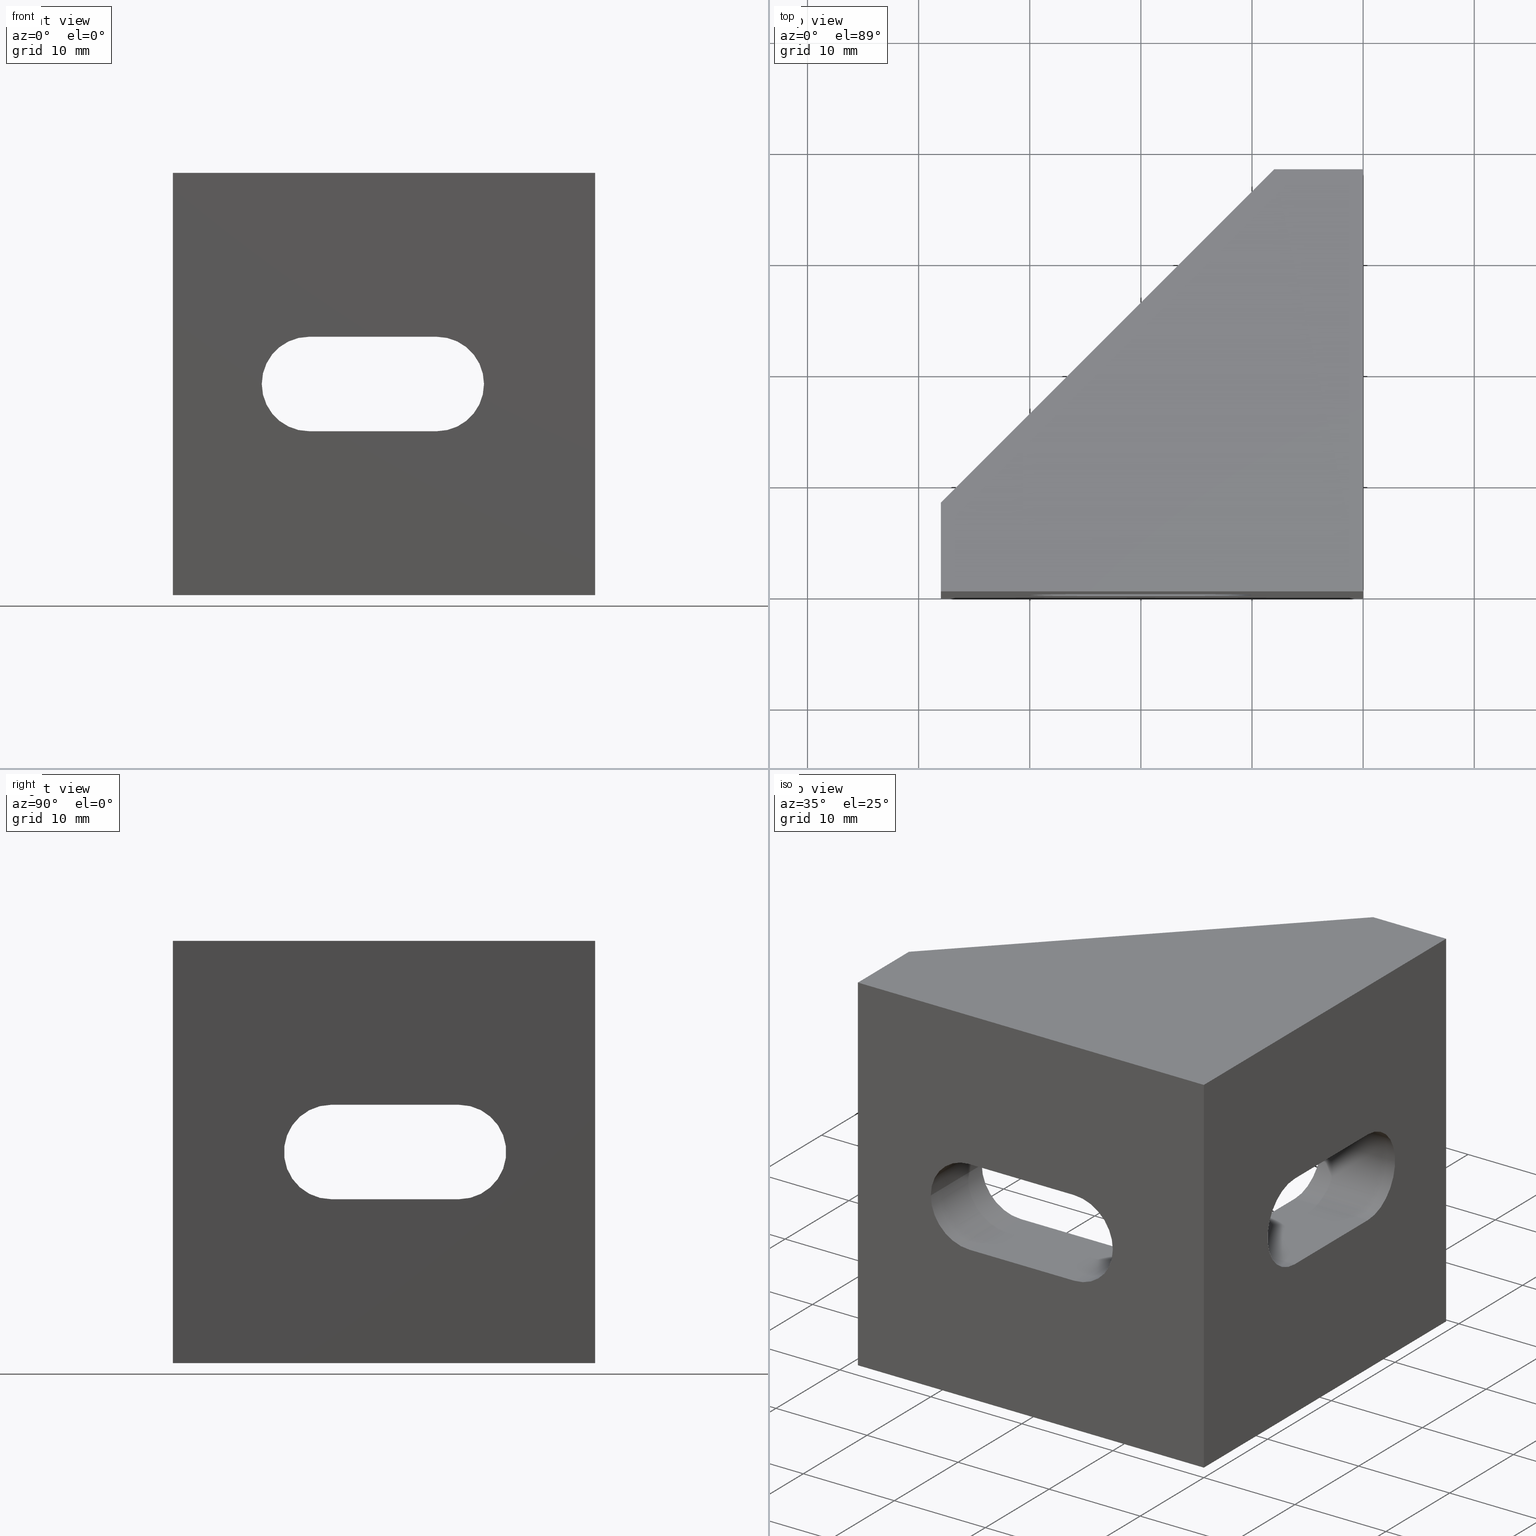
[diagram: canonical four-view strip — front | top / right | iso, engineering-drawing reading convention]
A machine part, canonical four-view strip (front | top / right | iso — engineering-drawing reading convention). The complete STEP part file that produces these views, byte-faithful:
ISO-10303-21;
HEADER;
/****************************************************************
 * Generated by software with PDE/Lib inside                    *
 * PDElib Version v4.4, created Mon 02/23/2004                  *
 * International Technegroup Inc. (www.iti-oh.com)              *
 ****************************************************************/
FILE_DESCRIPTION(('STEP AP203'),'2;1');
FILE_NAME('30.018.00.stp','2011-03-21T16:19:05',(''),(''),'2009.3.110','THINKDESIGN','');
FILE_SCHEMA(('CONFIG_CONTROL_DESIGN'));
ENDSEC;
DATA;
#2=CARTESIAN_POINT('',(0.0,37.999999999847205,-19.0));
#3=DIRECTION('',(0.0,1.0,0.0));
#4=DIRECTION('',(-1.0,0.0,0.0));
#5=AXIS2_PLACEMENT_3D('',#2,#3,#4);
#6=PLANE('',#5);
#7=CARTESIAN_POINT('',(0.0,37.999999999847205,-19.0));
#8=VERTEX_POINT('',#7);
#9=CARTESIAN_POINT('',(-7.999999999968168,37.999999999847205,-19.0));
#10=VERTEX_POINT('',#9);
#11=CARTESIAN_POINT('',(0.0,37.999999999847205,-19.0));
#12=DIRECTION('',(-1.0,0.0,0.0));
#13=VECTOR('',#12,7.999999999968168);
#14=LINE('',#11,#13);
#15=EDGE_CURVE('',#8,#10,#14,.T.);
#16=ORIENTED_EDGE('',*,*,#15,.T.);
#17=CARTESIAN_POINT('',(-7.999999999968168,37.999999999847205,-15.500000000000000));
#18=VERTEX_POINT('',#17);
#19=CARTESIAN_POINT('',(-7.999999999968168,37.999999999847205,-19.0));
#20=DIRECTION('',(0.0,0.0,1.0));
#21=VECTOR('',#20,3.500000000000000);
#22=LINE('',#19,#21);
#23=EDGE_CURVE('',#10,#18,#22,.T.);
#24=ORIENTED_EDGE('',*,*,#23,.T.);
#25=CARTESIAN_POINT('',(-7.999999999968168,37.999999999847205,15.500000000000000));
#26=VERTEX_POINT('',#25);
#27=CARTESIAN_POINT('',(-7.999999999968168,37.999999999847205,-15.500000000000000));
#28=DIRECTION('',(0.0,0.0,1.0));
#29=VECTOR('',#28,31.0);
#30=LINE('',#27,#29);
#31=EDGE_CURVE('',#18,#26,#30,.T.);
#32=ORIENTED_EDGE('',*,*,#31,.T.);
#33=CARTESIAN_POINT('',(-7.999999999968168,37.999999999847205,19.0));
#34=VERTEX_POINT('',#33);
#35=CARTESIAN_POINT('',(-7.999999999968168,37.999999999847205,15.500000000000000));
#36=DIRECTION('',(0.0,0.0,1.0));
#37=VECTOR('',#36,3.500000000000000);
#38=LINE('',#35,#37);
#39=EDGE_CURVE('',#26,#34,#38,.T.);
#40=ORIENTED_EDGE('',*,*,#39,.T.);
#41=CARTESIAN_POINT('',(0.0,37.999999999847205,19.0));
#42=VERTEX_POINT('',#41);
#43=CARTESIAN_POINT('',(0.0,37.999999999847205,19.0));
#44=DIRECTION('',(-1.0,0.0,0.0));
#45=VECTOR('',#44,7.999999999968168);
#46=LINE('',#43,#45);
#47=EDGE_CURVE('',#42,#34,#46,.T.);
#48=ORIENTED_EDGE('',*,*,#47,.F.);
#49=CARTESIAN_POINT('',(0.0,37.999999999847205,-19.0));
#50=DIRECTION('',(0.0,0.0,1.0));
#51=VECTOR('',#50,38.0);
#52=LINE('',#49,#51);
#53=EDGE_CURVE('',#8,#42,#52,.T.);
#54=ORIENTED_EDGE('',*,*,#53,.F.);
#55=EDGE_LOOP('',(#16,#24,#32,#40,#48,#54));
#56=FACE_OUTER_BOUND('',#55,.T.);
#57=ADVANCED_FACE('',(#56),#6,.T.);
#58=CARTESIAN_POINT('',(-7.999999999968168,37.999999999847205,-19.0));
#59=DIRECTION('',(-0.707106781186548,0.707106781186548,0.0));
#60=DIRECTION('',(-0.707106781186548,-0.707106781186548,0.0));
#61=AXIS2_PLACEMENT_3D('',#58,#59,#60);
#62=PLANE('',#61);
#63=CARTESIAN_POINT('',(-37.999999999848114,7.999999999967258,-19.0));
#64=VERTEX_POINT('',#63);
#65=CARTESIAN_POINT('',(-7.999999999968168,37.999999999847205,-19.0));
#66=DIRECTION('',(-0.707106781186548,-0.707106781186548,0.0));
#67=VECTOR('',#66,42.426406871023069);
#68=LINE('',#65,#67);
#69=EDGE_CURVE('',#10,#64,#68,.T.);
#70=ORIENTED_EDGE('',*,*,#69,.T.);
#71=CARTESIAN_POINT('',(-37.999999999848114,7.999999999967258,-15.500000000000000));
#72=VERTEX_POINT('',#71);
#73=CARTESIAN_POINT('',(-37.999999999848114,7.999999999967258,-19.0));
#74=DIRECTION('',(0.0,0.0,1.0));
#75=VECTOR('',#74,3.500000000000000);
#76=LINE('',#73,#75);
#77=EDGE_CURVE('',#64,#72,#76,.T.);
#78=ORIENTED_EDGE('',*,*,#77,.T.);
#79=CARTESIAN_POINT('',(-7.999999999968168,37.999999999847205,-15.500000000000000));
#80=DIRECTION('',(-0.707106781186548,-0.707106781186548,0.0));
#81=VECTOR('',#80,42.426406871023069);
#82=LINE('',#79,#81);
#83=EDGE_CURVE('',#18,#72,#82,.T.);
#84=ORIENTED_EDGE('',*,*,#83,.F.);
#85=ORIENTED_EDGE('',*,*,#23,.F.);
#86=EDGE_LOOP('',(#70,#78,#84,#85));
#87=FACE_OUTER_BOUND('',#86,.T.);
#88=ADVANCED_FACE('',(#87),#62,.T.);
#89=CARTESIAN_POINT('',(-7.999999999968168,37.999999999847205,-19.0));
#90=DIRECTION('',(-0.707106781186548,0.707106781186548,0.0));
#91=DIRECTION('',(-0.707106781186548,-0.707106781186548,0.0));
#92=AXIS2_PLACEMENT_3D('',#89,#90,#91);
#93=PLANE('',#92);
#94=ORIENTED_EDGE('',*,*,#39,.F.);
#95=CARTESIAN_POINT('',(-37.999999999848114,7.999999999967258,15.500000000000000));
#96=VERTEX_POINT('',#95);
#97=CARTESIAN_POINT('',(-7.999999999968168,37.999999999847205,15.500000000000000));
#98=DIRECTION('',(-0.707106781186548,-0.707106781186548,0.0));
#99=VECTOR('',#98,42.426406871023069);
#100=LINE('',#97,#99);
#101=EDGE_CURVE('',#26,#96,#100,.T.);
#102=ORIENTED_EDGE('',*,*,#101,.T.);
#103=CARTESIAN_POINT('',(-37.999999999848114,7.999999999967258,19.0));
#104=VERTEX_POINT('',#103);
#105=CARTESIAN_POINT('',(-37.999999999848114,7.999999999967258,15.500000000000000));
#106=DIRECTION('',(0.0,0.0,1.0));
#107=VECTOR('',#106,3.500000000000000);
#108=LINE('',#105,#107);
#109=EDGE_CURVE('',#96,#104,#108,.T.);
#110=ORIENTED_EDGE('',*,*,#109,.T.);
#111=CARTESIAN_POINT('',(-7.999999999968168,37.999999999847205,19.0));
#112=DIRECTION('',(-0.707106781186548,-0.707106781186548,0.0));
#113=VECTOR('',#112,42.426406871023069);
#114=LINE('',#111,#113);
#115=EDGE_CURVE('',#34,#104,#114,.T.);
#116=ORIENTED_EDGE('',*,*,#115,.F.);
#117=EDGE_LOOP('',(#94,#102,#110,#116));
#118=FACE_OUTER_BOUND('',#117,.T.);
#119=ADVANCED_FACE('',(#118),#93,.T.);
#120=CARTESIAN_POINT('',(-37.999999999848114,7.999999999967258,-19.0));
#121=DIRECTION('',(-1.0,0.0,0.0));
#122=DIRECTION('',(0.0,-1.0,0.0));
#123=AXIS2_PLACEMENT_3D('',#120,#121,#122);
#124=PLANE('',#123);
#125=CARTESIAN_POINT('',(-37.999999999848114,0.0,-19.0));
#126=VERTEX_POINT('',#125);
#127=CARTESIAN_POINT('',(-37.999999999848114,7.999999999967258,-19.0));
#128=DIRECTION('',(0.0,-1.0,0.0));
#129=VECTOR('',#128,7.999999999967258);
#130=LINE('',#127,#129);
#131=EDGE_CURVE('',#64,#126,#130,.T.);
#132=ORIENTED_EDGE('',*,*,#131,.T.);
#133=CARTESIAN_POINT('',(-37.999999999848114,0.0,19.0));
#134=VERTEX_POINT('',#133);
#135=CARTESIAN_POINT('',(-37.999999999848114,0.0,-19.0));
#136=DIRECTION('',(0.0,0.0,1.0));
#137=VECTOR('',#136,38.0);
#138=LINE('',#135,#137);
#139=EDGE_CURVE('',#126,#134,#138,.T.);
#140=ORIENTED_EDGE('',*,*,#139,.T.);
#141=CARTESIAN_POINT('',(-37.999999999848114,7.999999999967258,19.0));
#142=DIRECTION('',(0.0,-1.0,0.0));
#143=VECTOR('',#142,7.999999999967258);
#144=LINE('',#141,#143);
#145=EDGE_CURVE('',#104,#134,#144,.T.);
#146=ORIENTED_EDGE('',*,*,#145,.F.);
#147=ORIENTED_EDGE('',*,*,#109,.F.);
#148=CARTESIAN_POINT('',(-37.999999999848114,7.999999999967258,-15.500000000000000));
#149=DIRECTION('',(0.0,0.0,1.0));
#150=VECTOR('',#149,31.0);
#151=LINE('',#148,#150);
#152=EDGE_CURVE('',#72,#96,#151,.T.);
#153=ORIENTED_EDGE('',*,*,#152,.F.);
#154=ORIENTED_EDGE('',*,*,#77,.F.);
#155=EDGE_LOOP('',(#132,#140,#146,#147,#153,#154));
#156=FACE_OUTER_BOUND('',#155,.T.);
#157=ADVANCED_FACE('',(#156),#124,.T.);
#158=CARTESIAN_POINT('',(-37.999999999848114,0.0,-19.0));
#159=DIRECTION('',(0.0,-1.0,0.0));
#160=DIRECTION('',(1.0,0.0,0.0));
#161=AXIS2_PLACEMENT_3D('',#158,#159,#160);
#162=PLANE('',#161);
#163=CARTESIAN_POINT('',(0.0,0.0,-19.0));
#164=VERTEX_POINT('',#163);
#165=CARTESIAN_POINT('',(-37.999999999848114,0.0,-19.0));
#166=DIRECTION('',(1.0,0.0,0.0));
#167=VECTOR('',#166,37.999999999848114);
#168=LINE('',#165,#167);
#169=EDGE_CURVE('',#126,#164,#168,.T.);
#170=ORIENTED_EDGE('',*,*,#169,.T.);
#171=CARTESIAN_POINT('',(0.0,0.0,19.0));
#172=VERTEX_POINT('',#171);
#173=CARTESIAN_POINT('',(0.0,0.0,-19.0));
#174=DIRECTION('',(0.0,0.0,1.0));
#175=VECTOR('',#174,38.0);
#176=LINE('',#173,#175);
#177=EDGE_CURVE('',#164,#172,#176,.T.);
#178=ORIENTED_EDGE('',*,*,#177,.T.);
#179=CARTESIAN_POINT('',(-37.999999999848114,0.0,19.0));
#180=DIRECTION('',(1.0,0.0,0.0));
#181=VECTOR('',#180,37.999999999848114);
#182=LINE('',#179,#181);
#183=EDGE_CURVE('',#134,#172,#182,.T.);
#184=ORIENTED_EDGE('',*,*,#183,.F.);
#185=ORIENTED_EDGE('',*,*,#139,.F.);
#186=EDGE_LOOP('',(#170,#178,#184,#185));
#187=FACE_OUTER_BOUND('',#186,.T.);
#188=CARTESIAN_POINT('',(-14.249999999959982,0.0,-4.249999999983624));
#189=VERTEX_POINT('',#188);
#190=CARTESIAN_POINT('',(-9.999999999959982,0.0,1.637631E-011));
#191=VERTEX_POINT('',#190);
#192=CARTESIAN_POINT('',(-14.249999999959982,0.0,1.637623E-011));
#193=DIRECTION('',(0.0,-1.0,0.0));
#194=DIRECTION('',(0.0,0.0,-1.0));
#195=AXIS2_PLACEMENT_3D('',#192,#193,#194);
#196=CIRCLE('',#195,4.250000000000000);
#197=EDGE_CURVE('',#189,#191,#196,.T.);
#198=ORIENTED_EDGE('',*,*,#197,.F.);
#199=CARTESIAN_POINT('',(-25.749999999879947,0.0,-4.249999999983626));
#200=VERTEX_POINT('',#199);
#201=CARTESIAN_POINT('',(-25.749999999879947,0.0,-4.249999999983626));
#202=DIRECTION('',(1.0,0.0,0.0));
#203=VECTOR('',#202,11.499999999919964);
#204=LINE('',#201,#203);
#205=EDGE_CURVE('',#200,#189,#204,.T.);
#206=ORIENTED_EDGE('',*,*,#205,.F.);
#207=CARTESIAN_POINT('',(-29.999999999879947,0.0,1.637316E-011));
#208=VERTEX_POINT('',#207);
#209=CARTESIAN_POINT('',(-25.749999999879947,0.0,1.637342E-011));
#210=DIRECTION('',(0.0,-1.0,0.0));
#211=DIRECTION('',(0.0,0.0,-1.0));
#212=AXIS2_PLACEMENT_3D('',#209,#210,#211);
#213=CIRCLE('',#212,4.250000000000000);
#214=EDGE_CURVE('',#208,#200,#213,.T.);
#215=ORIENTED_EDGE('',*,*,#214,.F.);
#216=CARTESIAN_POINT('',(-25.749999999879947,0.0,4.250000000016374));
#217=VERTEX_POINT('',#216);
#218=CARTESIAN_POINT('',(-25.749999999879947,0.0,1.637342E-011));
#219=DIRECTION('',(0.0,-1.0,0.0));
#220=DIRECTION('',(0.0,0.0,1.0));
#221=AXIS2_PLACEMENT_3D('',#218,#219,#220);
#222=CIRCLE('',#221,4.250000000000000);
#223=EDGE_CURVE('',#217,#208,#222,.T.);
#224=ORIENTED_EDGE('',*,*,#223,.F.);
#225=CARTESIAN_POINT('',(-14.249999999959982,0.0,4.250000000016375));
#226=VERTEX_POINT('',#225);
#227=CARTESIAN_POINT('',(-14.249999999959982,0.0,4.250000000016375));
#228=DIRECTION('',(-1.0,0.0,0.0));
#229=VECTOR('',#228,11.499999999919964);
#230=LINE('',#227,#229);
#231=EDGE_CURVE('',#226,#217,#230,.T.);
#232=ORIENTED_EDGE('',*,*,#231,.F.);
#233=CARTESIAN_POINT('',(-14.249999999959982,0.0,1.637511E-011));
#234=DIRECTION('',(0.0,-1.0,0.0));
#235=DIRECTION('',(0.0,0.0,1.0));
#236=AXIS2_PLACEMENT_3D('',#233,#234,#235);
#237=CIRCLE('',#236,4.250000000000000);
#238=EDGE_CURVE('',#191,#226,#237,.T.);
#239=ORIENTED_EDGE('',*,*,#238,.F.);
#240=EDGE_LOOP('',(#198,#206,#215,#224,#232,#239));
#241=FACE_BOUND('',#240,.T.);
#242=ADVANCED_FACE('',(#187,#241),#162,.T.);
#243=CARTESIAN_POINT('',(0.0,0.0,-19.0));
#244=DIRECTION('',(1.0,0.0,0.0));
#245=DIRECTION('',(0.0,1.0,0.0));
#246=AXIS2_PLACEMENT_3D('',#243,#244,#245);
#247=PLANE('',#246);
#248=ORIENTED_EDGE('',*,*,#53,.T.);
#249=CARTESIAN_POINT('',(0.0,0.0,19.0));
#250=DIRECTION('',(0.0,1.0,0.0));
#251=VECTOR('',#250,37.999999999848114);
#252=LINE('',#249,#251);
#253=EDGE_CURVE('',#172,#42,#252,.T.);
#254=ORIENTED_EDGE('',*,*,#253,.F.);
#255=ORIENTED_EDGE('',*,*,#177,.F.);
#256=CARTESIAN_POINT('',(0.0,0.0,-19.0));
#257=DIRECTION('',(0.0,1.0,0.0));
#258=VECTOR('',#257,37.999999999848114);
#259=LINE('',#256,#258);
#260=EDGE_CURVE('',#164,#8,#259,.T.);
#261=ORIENTED_EDGE('',*,*,#260,.T.);
#262=EDGE_LOOP('',(#248,#254,#255,#261));
#263=FACE_OUTER_BOUND('',#262,.T.);
#264=CARTESIAN_POINT('',(0.0,25.749999999896318,-4.249999999983629));
#265=VERTEX_POINT('',#264);
#266=CARTESIAN_POINT('',(0.0,25.749999999896318,4.249999999983000));
#267=VERTEX_POINT('',#266);
#268=CARTESIAN_POINT('',(0.0,25.749999999896318,-3.144152E-013));
#269=DIRECTION('',(1.0,0.0,0.0));
#270=DIRECTION('',(0.0,1.0,0.0));
#271=AXIS2_PLACEMENT_3D('',#268,#269,#270);
#272=CIRCLE('',#271,4.249999999983315);
#273=EDGE_CURVE('',#265,#267,#272,.T.);
#274=ORIENTED_EDGE('',*,*,#273,.F.);
#275=CARTESIAN_POINT('',(0.0,14.249999999942702,-4.249999999983629));
#276=VERTEX_POINT('',#275);
#277=CARTESIAN_POINT('',(0.0,14.249999999942702,-4.249999999983629));
#278=DIRECTION('',(0.0,1.0,0.0));
#279=VECTOR('',#278,11.499999999953616);
#280=LINE('',#277,#279);
#281=EDGE_CURVE('',#276,#265,#280,.T.);
#282=ORIENTED_EDGE('',*,*,#281,.F.);
#283=CARTESIAN_POINT('',(0.0,14.249999999942702,4.249999999983000));
#284=VERTEX_POINT('',#283);
#285=CARTESIAN_POINT('',(0.0,14.249999999942702,-3.144152E-013));
#286=DIRECTION('',(1.0,0.0,0.0));
#287=DIRECTION('',(0.0,1.0,0.0));
#288=AXIS2_PLACEMENT_3D('',#285,#286,#287);
#289=CIRCLE('',#288,4.249999999983315);
#290=EDGE_CURVE('',#284,#276,#289,.T.);
#291=ORIENTED_EDGE('',*,*,#290,.F.);
#292=CARTESIAN_POINT('',(0.0,25.749999999896318,4.249999999983000));
#293=DIRECTION('',(0.0,-1.0,0.0));
#294=VECTOR('',#293,11.499999999953616);
#295=LINE('',#292,#294);
#296=EDGE_CURVE('',#267,#284,#295,.T.);
#297=ORIENTED_EDGE('',*,*,#296,.F.);
#298=EDGE_LOOP('',(#274,#282,#291,#297));
#299=FACE_BOUND('',#298,.T.);
#300=ADVANCED_FACE('',(#263,#299),#247,.T.);
#301=CARTESIAN_POINT('',(-41.800004740979603,-3.800004741223347,-19.0));
#302=DIRECTION('',(0.0,0.0,1.0));
#303=DIRECTION('',(1.0,0.0,0.0));
#304=AXIS2_PLACEMENT_3D('',#301,#302,#303);
#305=PLANE('',#304);
#306=ORIENTED_EDGE('',*,*,#260,.F.);
#307=ORIENTED_EDGE('',*,*,#169,.F.);
#308=ORIENTED_EDGE('',*,*,#131,.F.);
#309=ORIENTED_EDGE('',*,*,#69,.F.);
#310=ORIENTED_EDGE('',*,*,#15,.F.);
#311=EDGE_LOOP('',(#306,#307,#308,#309,#310));
#312=FACE_OUTER_BOUND('',#311,.T.);
#313=ADVANCED_FACE('',(#312),#305,.F.);
#314=CARTESIAN_POINT('',(-41.800004740979603,-3.800004741223347,19.0));
#315=DIRECTION('',(0.0,0.0,1.0));
#316=DIRECTION('',(1.0,0.0,0.0));
#317=AXIS2_PLACEMENT_3D('',#314,#315,#316);
#318=PLANE('',#317);
#319=ORIENTED_EDGE('',*,*,#47,.T.);
#320=ORIENTED_EDGE('',*,*,#115,.T.);
#321=ORIENTED_EDGE('',*,*,#145,.T.);
#322=ORIENTED_EDGE('',*,*,#183,.T.);
#323=ORIENTED_EDGE('',*,*,#253,.T.);
#324=EDGE_LOOP('',(#319,#320,#321,#322,#323));
#325=FACE_OUTER_BOUND('',#324,.T.);
#326=ADVANCED_FACE('',(#325),#318,.T.);
#327=CARTESIAN_POINT('',(-7.999999999968168,7.999999999967258,15.500000000000000));
#328=DIRECTION('',(-1.0,0.0,0.0));
#329=DIRECTION('',(0.0,1.0,0.0));
#330=AXIS2_PLACEMENT_3D('',#327,#328,#329);
#331=PLANE('',#330);
#332=CARTESIAN_POINT('',(-7.999999999968168,7.999999999967258,15.500000000000000));
#333=VERTEX_POINT('',#332);
#334=CARTESIAN_POINT('',(-7.999999999968168,7.999999999967258,15.500000000000000));
#335=DIRECTION('',(0.0,1.0,0.0));
#336=VECTOR('',#335,29.999999999879947);
#337=LINE('',#334,#336);
#338=EDGE_CURVE('',#333,#26,#337,.T.);
#339=ORIENTED_EDGE('',*,*,#338,.T.);
#340=ORIENTED_EDGE('',*,*,#31,.F.);
#341=CARTESIAN_POINT('',(-7.999999999968168,7.999999999967258,-15.500000000000000));
#342=VERTEX_POINT('',#341);
#343=CARTESIAN_POINT('',(-7.999999999968168,7.999999999967258,-15.500000000000000));
#344=DIRECTION('',(0.0,1.0,0.0));
#345=VECTOR('',#344,29.999999999879947);
#346=LINE('',#343,#345);
#347=EDGE_CURVE('',#342,#18,#346,.T.);
#348=ORIENTED_EDGE('',*,*,#347,.F.);
#349=CARTESIAN_POINT('',(-7.999999999968168,7.999999999967258,15.500000000000000));
#350=DIRECTION('',(0.0,0.0,-1.0));
#351=VECTOR('',#350,31.0);
#352=LINE('',#349,#351);
#353=EDGE_CURVE('',#333,#342,#352,.T.);
#354=ORIENTED_EDGE('',*,*,#353,.F.);
#355=EDGE_LOOP('',(#339,#340,#348,#354));
#356=FACE_OUTER_BOUND('',#355,.T.);
#357=CARTESIAN_POINT('',(-7.999999999968168,25.749999999896318,-4.249999999983629));
#358=VERTEX_POINT('',#357);
#359=CARTESIAN_POINT('',(-7.999999999968168,25.749999999896318,4.249999999983000));
#360=VERTEX_POINT('',#359);
#361=CARTESIAN_POINT('',(-7.999999999968168,25.749999999896318,-3.144152E-013));
#362=DIRECTION('',(1.0,0.0,0.0));
#363=DIRECTION('',(0.0,1.0,0.0));
#364=AXIS2_PLACEMENT_3D('',#361,#362,#363);
#365=CIRCLE('',#364,4.249999999983315);
#366=EDGE_CURVE('',#358,#360,#365,.T.);
#367=ORIENTED_EDGE('',*,*,#366,.T.);
#368=CARTESIAN_POINT('',(-7.999999999968168,14.249999999942702,4.249999999983000));
#369=VERTEX_POINT('',#368);
#370=CARTESIAN_POINT('',(-7.999999999968168,25.749999999896318,4.249999999983000));
#371=DIRECTION('',(0.0,-1.0,0.0));
#372=VECTOR('',#371,11.499999999953616);
#373=LINE('',#370,#372);
#374=EDGE_CURVE('',#360,#369,#373,.T.);
#375=ORIENTED_EDGE('',*,*,#374,.T.);
#376=CARTESIAN_POINT('',(-7.999999999968168,14.249999999942702,-4.249999999983629));
#377=VERTEX_POINT('',#376);
#378=CARTESIAN_POINT('',(-7.999999999968168,14.249999999942702,-3.144152E-013));
#379=DIRECTION('',(1.0,0.0,0.0));
#380=DIRECTION('',(0.0,1.0,0.0));
#381=AXIS2_PLACEMENT_3D('',#378,#379,#380);
#382=CIRCLE('',#381,4.249999999983315);
#383=EDGE_CURVE('',#369,#377,#382,.T.);
#384=ORIENTED_EDGE('',*,*,#383,.T.);
#385=CARTESIAN_POINT('',(-7.999999999968168,25.749999999896318,-4.249999999983629));
#386=DIRECTION('',(0.0,-1.0,0.0));
#387=VECTOR('',#386,11.499999999953616);
#388=LINE('',#385,#387);
#389=EDGE_CURVE('',#358,#377,#388,.T.);
#390=ORIENTED_EDGE('',*,*,#389,.F.);
#391=EDGE_LOOP('',(#367,#375,#384,#390));
#392=FACE_BOUND('',#391,.T.);
#393=ADVANCED_FACE('',(#356,#392),#331,.T.);
#394=CARTESIAN_POINT('',(-51.999999999968168,7.999999999967258,15.500000000000000));
#395=DIRECTION('',(0.0,1.0,0.0));
#396=DIRECTION('',(1.0,0.0,0.0));
#397=AXIS2_PLACEMENT_3D('',#394,#395,#396);
#398=PLANE('',#397);
#399=ORIENTED_EDGE('',*,*,#353,.T.);
#400=CARTESIAN_POINT('',(-37.999999999848114,7.999999999967258,-15.500000000000000));
#401=DIRECTION('',(1.0,0.0,0.0));
#402=VECTOR('',#401,29.999999999879947);
#403=LINE('',#400,#402);
#404=EDGE_CURVE('',#72,#342,#403,.T.);
#405=ORIENTED_EDGE('',*,*,#404,.F.);
#406=ORIENTED_EDGE('',*,*,#152,.T.);
#407=CARTESIAN_POINT('',(-37.999999999848114,7.999999999967258,15.500000000000000));
#408=DIRECTION('',(1.0,0.0,0.0));
#409=VECTOR('',#408,29.999999999879947);
#410=LINE('',#407,#409);
#411=EDGE_CURVE('',#96,#333,#410,.T.);
#412=ORIENTED_EDGE('',*,*,#411,.T.);
#413=EDGE_LOOP('',(#399,#405,#406,#412));
#414=FACE_OUTER_BOUND('',#413,.T.);
#415=CARTESIAN_POINT('',(-14.249999999959982,7.999999999967258,-4.249999999983624));
#416=VERTEX_POINT('',#415);
#417=CARTESIAN_POINT('',(-9.999999999959982,7.999999999967258,1.637631E-011));
#418=VERTEX_POINT('',#417);
#419=CARTESIAN_POINT('',(-14.249999999959982,7.999999999967258,1.637623E-011));
#420=DIRECTION('',(0.0,-1.0,0.0));
#421=DIRECTION('',(0.0,0.0,-1.0));
#422=AXIS2_PLACEMENT_3D('',#419,#420,#421);
#423=CIRCLE('',#422,4.250000000000000);
#424=EDGE_CURVE('',#416,#418,#423,.T.);
#425=ORIENTED_EDGE('',*,*,#424,.T.);
#426=CARTESIAN_POINT('',(-14.249999999959982,7.999999999967258,4.250000000016375));
#427=VERTEX_POINT('',#426);
#428=CARTESIAN_POINT('',(-14.249999999959982,7.999999999967258,1.637511E-011));
#429=DIRECTION('',(0.0,-1.0,0.0));
#430=DIRECTION('',(0.0,0.0,1.0));
#431=AXIS2_PLACEMENT_3D('',#428,#429,#430);
#432=CIRCLE('',#431,4.250000000000000);
#433=EDGE_CURVE('',#418,#427,#432,.T.);
#434=ORIENTED_EDGE('',*,*,#433,.T.);
#435=CARTESIAN_POINT('',(-25.749999999879947,7.999999999967258,4.250000000016374));
#436=VERTEX_POINT('',#435);
#437=CARTESIAN_POINT('',(-14.249999999959982,7.999999999967258,4.250000000016375));
#438=DIRECTION('',(-1.0,0.0,0.0));
#439=VECTOR('',#438,11.499999999919964);
#440=LINE('',#437,#439);
#441=EDGE_CURVE('',#427,#436,#440,.T.);
#442=ORIENTED_EDGE('',*,*,#441,.T.);
#443=CARTESIAN_POINT('',(-29.999999999879947,7.999999999967258,1.637316E-011));
#444=VERTEX_POINT('',#443);
#445=CARTESIAN_POINT('',(-25.749999999879947,7.999999999967258,1.637342E-011));
#446=DIRECTION('',(0.0,-1.0,0.0));
#447=DIRECTION('',(0.0,0.0,1.0));
#448=AXIS2_PLACEMENT_3D('',#445,#446,#447);
#449=CIRCLE('',#448,4.250000000000000);
#450=EDGE_CURVE('',#436,#444,#449,.T.);
#451=ORIENTED_EDGE('',*,*,#450,.T.);
#452=CARTESIAN_POINT('',(-25.749999999879947,7.999999999967258,-4.249999999983626));
#453=VERTEX_POINT('',#452);
#454=CARTESIAN_POINT('',(-25.749999999879947,7.999999999967258,1.637342E-011));
#455=DIRECTION('',(0.0,-1.0,0.0));
#456=DIRECTION('',(0.0,0.0,-1.0));
#457=AXIS2_PLACEMENT_3D('',#454,#455,#456);
#458=CIRCLE('',#457,4.250000000000000);
#459=EDGE_CURVE('',#444,#453,#458,.T.);
#460=ORIENTED_EDGE('',*,*,#459,.T.);
#461=CARTESIAN_POINT('',(-14.249999999959982,7.999999999967258,-4.249999999983624));
#462=DIRECTION('',(-1.0,0.0,0.0));
#463=VECTOR('',#462,11.499999999919964);
#464=LINE('',#461,#463);
#465=EDGE_CURVE('',#416,#453,#464,.T.);
#466=ORIENTED_EDGE('',*,*,#465,.F.);
#467=EDGE_LOOP('',(#425,#434,#442,#451,#460,#466));
#468=FACE_BOUND('',#467,.T.);
#469=ADVANCED_FACE('',(#414,#468),#398,.T.);
#470=CARTESIAN_POINT('',(-56.400071687903619,4.299928312029806,15.500000000000000));
#471=DIRECTION('',(0.0,0.0,1.0));
#472=DIRECTION('',(1.0,0.0,0.0));
#473=AXIS2_PLACEMENT_3D('',#470,#471,#472);
#474=PLANE('',#473);
#475=ORIENTED_EDGE('',*,*,#411,.F.);
#476=ORIENTED_EDGE('',*,*,#101,.F.);
#477=ORIENTED_EDGE('',*,*,#338,.F.);
#478=EDGE_LOOP('',(#475,#476,#477));
#479=FACE_OUTER_BOUND('',#478,.T.);
#480=ADVANCED_FACE('',(#479),#474,.F.);
#481=CARTESIAN_POINT('',(-56.400071687903619,4.299928312029806,-15.500000000000000));
#482=DIRECTION('',(0.0,0.0,1.0));
#483=DIRECTION('',(1.0,0.0,0.0));
#484=AXIS2_PLACEMENT_3D('',#481,#482,#483);
#485=PLANE('',#484);
#486=ORIENTED_EDGE('',*,*,#347,.T.);
#487=ORIENTED_EDGE('',*,*,#83,.T.);
#488=ORIENTED_EDGE('',*,*,#404,.T.);
#489=EDGE_LOOP('',(#486,#487,#488));
#490=FACE_OUTER_BOUND('',#489,.T.);
#491=ADVANCED_FACE('',(#490),#485,.T.);
#492=CARTESIAN_POINT('',(0.0,25.749999999896318,-3.144152E-013));
#493=DIRECTION('',(1.0,0.0,0.0));
#494=DIRECTION('',(0.0,6.123234E-017,-1.0));
#495=AXIS2_PLACEMENT_3D('',#492,#493,#494);
#496=CYLINDRICAL_SURFACE('',#495,4.249999999983315);
#497=CARTESIAN_POINT('',(0.0,25.749999999896318,4.249999999983000));
#498=DIRECTION('',(-1.0,0.0,0.0));
#499=VECTOR('',#498,7.999999999968168);
#500=LINE('',#497,#499);
#501=EDGE_CURVE('',#267,#360,#500,.T.);
#502=ORIENTED_EDGE('',*,*,#501,.T.);
#503=ORIENTED_EDGE('',*,*,#366,.F.);
#504=CARTESIAN_POINT('',(0.0,25.749999999896318,-4.249999999983629));
#505=DIRECTION('',(-1.0,0.0,0.0));
#506=VECTOR('',#505,7.999999999968168);
#507=LINE('',#504,#506);
#508=EDGE_CURVE('',#265,#358,#507,.T.);
#509=ORIENTED_EDGE('',*,*,#508,.F.);
#510=ORIENTED_EDGE('',*,*,#273,.T.);
#511=EDGE_LOOP('',(#502,#503,#509,#510));
#512=FACE_OUTER_BOUND('',#511,.T.);
#513=ADVANCED_FACE('',(#512),#496,.F.);
#514=CARTESIAN_POINT('',(0.0,25.749999999896318,4.249999999983000));
#515=DIRECTION('',(0.0,0.0,-1.0));
#516=DIRECTION('',(0.0,-1.0,0.0));
#517=AXIS2_PLACEMENT_3D('',#514,#515,#516);
#518=PLANE('',#517);
#519=ORIENTED_EDGE('',*,*,#296,.T.);
#520=CARTESIAN_POINT('',(0.0,14.249999999942702,4.249999999983000));
#521=DIRECTION('',(-1.0,0.0,0.0));
#522=VECTOR('',#521,7.999999999968168);
#523=LINE('',#520,#522);
#524=EDGE_CURVE('',#284,#369,#523,.T.);
#525=ORIENTED_EDGE('',*,*,#524,.T.);
#526=ORIENTED_EDGE('',*,*,#374,.F.);
#527=ORIENTED_EDGE('',*,*,#501,.F.);
#528=EDGE_LOOP('',(#519,#525,#526,#527));
#529=FACE_OUTER_BOUND('',#528,.T.);
#530=ADVANCED_FACE('',(#529),#518,.T.);
#531=CARTESIAN_POINT('',(0.0,14.249999999942702,-3.144152E-013));
#532=DIRECTION('',(1.0,0.0,0.0));
#533=DIRECTION('',(0.0,1.0,0.0));
#534=AXIS2_PLACEMENT_3D('',#531,#532,#533);
#535=CYLINDRICAL_SURFACE('',#534,4.249999999983315);
#536=ORIENTED_EDGE('',*,*,#290,.T.);
#537=CARTESIAN_POINT('',(0.0,14.249999999942702,-4.249999999983629));
#538=DIRECTION('',(-1.0,0.0,0.0));
#539=VECTOR('',#538,7.999999999968168);
#540=LINE('',#537,#539);
#541=EDGE_CURVE('',#276,#377,#540,.T.);
#542=ORIENTED_EDGE('',*,*,#541,.T.);
#543=ORIENTED_EDGE('',*,*,#383,.F.);
#544=ORIENTED_EDGE('',*,*,#524,.F.);
#545=EDGE_LOOP('',(#536,#542,#543,#544));
#546=FACE_OUTER_BOUND('',#545,.T.);
#547=ADVANCED_FACE('',(#546),#535,.F.);
#548=CARTESIAN_POINT('',(0.0,14.249999999942702,-4.249999999983629));
#549=DIRECTION('',(0.0,0.0,1.0));
#550=DIRECTION('',(0.0,1.0,0.0));
#551=AXIS2_PLACEMENT_3D('',#548,#549,#550);
#552=PLANE('',#551);
#553=ORIENTED_EDGE('',*,*,#508,.T.);
#554=ORIENTED_EDGE('',*,*,#389,.T.);
#555=ORIENTED_EDGE('',*,*,#541,.F.);
#556=ORIENTED_EDGE('',*,*,#281,.T.);
#557=EDGE_LOOP('',(#553,#554,#555,#556));
#558=FACE_OUTER_BOUND('',#557,.T.);
#559=ADVANCED_FACE('',(#558),#552,.T.);
#560=CARTESIAN_POINT('',(-14.249999999959982,0.0,1.637623E-011));
#561=DIRECTION('',(0.0,-1.0,0.0));
#562=DIRECTION('',(0.0,0.0,-1.0));
#563=AXIS2_PLACEMENT_3D('',#560,#561,#562);
#564=CYLINDRICAL_SURFACE('',#563,4.250000000000000);
#565=CARTESIAN_POINT('',(-9.999999999959982,0.0,1.637631E-011));
#566=DIRECTION('',(0.0,1.0,0.0));
#567=VECTOR('',#566,7.999999999967258);
#568=LINE('',#565,#567);
#569=EDGE_CURVE('',#191,#418,#568,.T.);
#570=ORIENTED_EDGE('',*,*,#569,.T.);
#571=ORIENTED_EDGE('',*,*,#424,.F.);
#572=CARTESIAN_POINT('',(-14.249999999959982,0.0,-4.249999999983624));
#573=DIRECTION('',(0.0,1.0,0.0));
#574=VECTOR('',#573,7.999999999967258);
#575=LINE('',#572,#574);
#576=EDGE_CURVE('',#189,#416,#575,.T.);
#577=ORIENTED_EDGE('',*,*,#576,.F.);
#578=ORIENTED_EDGE('',*,*,#197,.T.);
#579=EDGE_LOOP('',(#570,#571,#577,#578));
#580=FACE_OUTER_BOUND('',#579,.T.);
#581=ADVANCED_FACE('',(#580),#564,.F.);
#582=CARTESIAN_POINT('',(-14.249999999959982,0.0,1.637511E-011));
#583=DIRECTION('',(0.0,-1.0,0.0));
#584=DIRECTION('',(1.0,0.0,2.832769E-016));
#585=AXIS2_PLACEMENT_3D('',#582,#583,#584);
#586=CYLINDRICAL_SURFACE('',#585,4.250000000000000);
#587=ORIENTED_EDGE('',*,*,#238,.T.);
#588=CARTESIAN_POINT('',(-14.249999999959982,0.0,4.250000000016375));
#589=DIRECTION('',(0.0,1.0,0.0));
#590=VECTOR('',#589,7.999999999967258);
#591=LINE('',#588,#590);
#592=EDGE_CURVE('',#226,#427,#591,.T.);
#593=ORIENTED_EDGE('',*,*,#592,.T.);
#594=ORIENTED_EDGE('',*,*,#433,.F.);
#595=ORIENTED_EDGE('',*,*,#569,.F.);
#596=EDGE_LOOP('',(#587,#593,#594,#595));
#597=FACE_OUTER_BOUND('',#596,.T.);
#598=ADVANCED_FACE('',(#597),#586,.F.);
#599=CARTESIAN_POINT('',(-14.249999999959982,0.0,4.250000000016375));
#600=DIRECTION('',(0.0,0.0,-1.0));
#601=DIRECTION('',(-1.0,0.0,0.0));
#602=AXIS2_PLACEMENT_3D('',#599,#600,#601);
#603=PLANE('',#602);
#604=ORIENTED_EDGE('',*,*,#231,.T.);
#605=CARTESIAN_POINT('',(-25.749999999879947,0.0,4.250000000016374));
#606=DIRECTION('',(0.0,1.0,0.0));
#607=VECTOR('',#606,7.999999999967258);
#608=LINE('',#605,#607);
#609=EDGE_CURVE('',#217,#436,#608,.T.);
#610=ORIENTED_EDGE('',*,*,#609,.T.);
#611=ORIENTED_EDGE('',*,*,#441,.F.);
#612=ORIENTED_EDGE('',*,*,#592,.F.);
#613=EDGE_LOOP('',(#604,#610,#611,#612));
#614=FACE_OUTER_BOUND('',#613,.T.);
#615=ADVANCED_FACE('',(#614),#603,.T.);
#616=CARTESIAN_POINT('',(-25.749999999879947,0.0,1.637342E-011));
#617=DIRECTION('',(0.0,-1.0,0.0));
#618=DIRECTION('',(0.0,0.0,1.0));
#619=AXIS2_PLACEMENT_3D('',#616,#617,#618);
#620=CYLINDRICAL_SURFACE('',#619,4.250000000000000);
#621=ORIENTED_EDGE('',*,*,#223,.T.);
#622=CARTESIAN_POINT('',(-29.999999999879947,0.0,1.637316E-011));
#623=DIRECTION('',(0.0,1.0,0.0));
#624=VECTOR('',#623,7.999999999967258);
#625=LINE('',#622,#624);
#626=EDGE_CURVE('',#208,#444,#625,.T.);
#627=ORIENTED_EDGE('',*,*,#626,.T.);
#628=ORIENTED_EDGE('',*,*,#450,.F.);
#629=ORIENTED_EDGE('',*,*,#609,.F.);
#630=EDGE_LOOP('',(#621,#627,#628,#629));
#631=FACE_OUTER_BOUND('',#630,.T.);
#632=ADVANCED_FACE('',(#631),#620,.F.);
#633=CARTESIAN_POINT('',(-25.749999999879947,0.0,1.637342E-011));
#634=DIRECTION('',(0.0,-1.0,0.0));
#635=DIRECTION('',(-1.0,0.0,-6.123234E-017));
#636=AXIS2_PLACEMENT_3D('',#633,#634,#635);
#637=CYLINDRICAL_SURFACE('',#636,4.250000000000000);
#638=ORIENTED_EDGE('',*,*,#214,.T.);
#639=CARTESIAN_POINT('',(-25.749999999879947,0.0,-4.249999999983626));
#640=DIRECTION('',(0.0,1.0,0.0));
#641=VECTOR('',#640,7.999999999967258);
#642=LINE('',#639,#641);
#643=EDGE_CURVE('',#200,#453,#642,.T.);
#644=ORIENTED_EDGE('',*,*,#643,.T.);
#645=ORIENTED_EDGE('',*,*,#459,.F.);
#646=ORIENTED_EDGE('',*,*,#626,.F.);
#647=EDGE_LOOP('',(#638,#644,#645,#646));
#648=FACE_OUTER_BOUND('',#647,.T.);
#649=ADVANCED_FACE('',(#648),#637,.F.);
#650=CARTESIAN_POINT('',(-25.749999999879947,0.0,-4.249999999983626));
#651=DIRECTION('',(0.0,0.0,1.0));
#652=DIRECTION('',(1.0,0.0,0.0));
#653=AXIS2_PLACEMENT_3D('',#650,#651,#652);
#654=PLANE('',#653);
#655=ORIENTED_EDGE('',*,*,#576,.T.);
#656=ORIENTED_EDGE('',*,*,#465,.T.);
#657=ORIENTED_EDGE('',*,*,#643,.F.);
#658=ORIENTED_EDGE('',*,*,#205,.T.);
#659=EDGE_LOOP('',(#655,#656,#657,#658));
#660=FACE_OUTER_BOUND('',#659,.T.);
#661=ADVANCED_FACE('',(#660),#654,.T.);
#662=CLOSED_SHELL('',(#57,#88,#119,#157,#242,#300,#313,#326,#393,#469,#480,#491,#513,#530,#547,#559,#581,#598,#615,#632,#649,#661));
#663=MANIFOLD_SOLID_BREP('',#662);
#669=(NAMED_UNIT(*)PLANE_ANGLE_UNIT()SI_UNIT($,.RADIAN.));
#670=DIMENSIONAL_EXPONENTS(0.0,0.0,0.0,0.0,0.0,0.0,0.0);
#671=PLANE_ANGLE_MEASURE_WITH_UNIT(PLANE_ANGLE_MEASURE(0.017453292500000),#669);
#675=(CONVERSION_BASED_UNIT('DEGREE',#671)NAMED_UNIT(#670)PLANE_ANGLE_UNIT());
#679=(NAMED_UNIT(*)SI_UNIT($,.STERADIAN.)SOLID_ANGLE_UNIT());
#683=(LENGTH_UNIT()NAMED_UNIT(*)SI_UNIT(.MILLI.,.METRE.));
#685=UNCERTAINTY_MEASURE_WITH_UNIT(LENGTH_MEASURE(0.001000000000000),#683,'DISTANCE_ACCURACY_VALUE','');
#687=(GEOMETRIC_REPRESENTATION_CONTEXT(3)GLOBAL_UNCERTAINTY_ASSIGNED_CONTEXT((#685))GLOBAL_UNIT_ASSIGNED_CONTEXT((#675,#679,#683))REPRESENTATION_CONTEXT('thinkdesign','2009.3.110'));
#688=ADVANCED_BREP_SHAPE_REPRESENTATION('',(#663),#687);
#689=APPLICATION_CONTEXT('configuration controlled 3D designs of mechanical parts and assemblies');
#690=APPLICATION_PROTOCOL_DEFINITION('International Standard','config_control_design',1995,#689);
#691=MECHANICAL_CONTEXT('None',#689,'mechanical');
#692=PRODUCT('None','None','None',(#691));
#693=PRODUCT_RELATED_PRODUCT_CATEGORY('detail',$,(#692));
#694=PRODUCT_CATEGORY('part',$);
#695=PRODUCT_CATEGORY_RELATIONSHIP('None','None',#694,#693);
#696=PERSON('PERSON1','None','None',$,$,$);
#697=ORGANIZATION('','None','None');
#698=PERSON_AND_ORGANIZATION(#696,#697);
#699=PERSON_AND_ORGANIZATION_ROLE('design_owner');
#700=CC_DESIGN_PERSON_AND_ORGANIZATION_ASSIGNMENT(#698,#699,(#692));
#701=PRODUCT_DEFINITION_FORMATION_WITH_SPECIFIED_SOURCE('None','None',#692,.NOT_KNOWN.);
#702=PERSON('PERSON2','None','None',$,$,$);
#703=ORGANIZATION('','None','None');
#704=PERSON_AND_ORGANIZATION(#702,#703);
#705=PERSON_AND_ORGANIZATION_ROLE('creator');
#706=CC_DESIGN_PERSON_AND_ORGANIZATION_ASSIGNMENT(#704,#705,(#701));
#707=PERSON('PERSON3','None','None',$,$,$);
#708=ORGANIZATION('','None','None');
#709=PERSON_AND_ORGANIZATION(#707,#708);
#710=PERSON_AND_ORGANIZATION_ROLE('part_supplier');
#711=CC_DESIGN_PERSON_AND_ORGANIZATION_ASSIGNMENT(#709,#710,(#701));
#712=APPROVAL_STATUS('approved');
#713=APPROVAL(#712,'None');
#714=PERSON('PERSON4','None','None',$,$,$);
#715=ORGANIZATION('','None','None');
#716=PERSON_AND_ORGANIZATION(#714,#715);
#717=APPROVAL_ROLE('None');
#718=APPROVAL_PERSON_ORGANIZATION(#716,#713,#717);
#719=CALENDAR_DATE(2011,21,3);
#720=COORDINATED_UNIVERSAL_TIME_OFFSET(0,0,.AHEAD.);
#721=LOCAL_TIME(16,19,5.0,#720);
#722=DATE_AND_TIME(#719,#721);
#723=APPROVAL_DATE_TIME(#722,#713);
#724=CC_DESIGN_APPROVAL(#713,(#701));
#725=SECURITY_CLASSIFICATION_LEVEL('unclassified');
#726=SECURITY_CLASSIFICATION('None','None',#725);
#727=CC_DESIGN_SECURITY_CLASSIFICATION(#726,(#701));
#728=APPROVAL_STATUS('approved');
#729=APPROVAL(#728,'None');
#730=PERSON('PERSON5','None','None',$,$,$);
#731=ORGANIZATION('','None','None');
#732=PERSON_AND_ORGANIZATION(#730,#731);
#733=APPROVAL_ROLE('None');
#734=APPROVAL_PERSON_ORGANIZATION(#732,#729,#733);
#735=CALENDAR_DATE(2011,21,3);
#736=COORDINATED_UNIVERSAL_TIME_OFFSET(0,0,.AHEAD.);
#737=LOCAL_TIME(16,19,5.0,#736);
#738=DATE_AND_TIME(#735,#737);
#739=APPROVAL_DATE_TIME(#738,#729);
#740=CC_DESIGN_APPROVAL(#729,(#726));
#741=PERSON('PERSON6','None','None',$,$,$);
#742=ORGANIZATION('','None','None');
#743=PERSON_AND_ORGANIZATION(#741,#742);
#744=PERSON_AND_ORGANIZATION_ROLE('classification_officer');
#745=CC_DESIGN_PERSON_AND_ORGANIZATION_ASSIGNMENT(#743,#744,(#726));
#746=DATE_TIME_ROLE('classification_date');
#747=CALENDAR_DATE(2011,21,3);
#748=COORDINATED_UNIVERSAL_TIME_OFFSET(0,0,.AHEAD.);
#749=LOCAL_TIME(16,19,5.0,#748);
#750=DATE_AND_TIME(#747,#749);
#751=CC_DESIGN_DATE_AND_TIME_ASSIGNMENT(#750,#746,(#726));
#752=DESIGN_CONTEXT('part definition',#689,'design');
#753=DOCUMENT_TYPE('cad_filename');
#754=DOCUMENT('None','None','None',#753);
#755=PRODUCT_DEFINITION_WITH_ASSOCIATED_DOCUMENTS('None','None',#701,#752,(#754));
#756=PERSON('PERSON7','None','None',$,$,$);
#757=ORGANIZATION('','None','None');
#758=PERSON_AND_ORGANIZATION(#756,#757);
#759=PERSON_AND_ORGANIZATION_ROLE('creator');
#760=CC_DESIGN_PERSON_AND_ORGANIZATION_ASSIGNMENT(#758,#759,(#755));
#761=DATE_TIME_ROLE('creation_date');
#762=CALENDAR_DATE(2011,21,3);
#763=COORDINATED_UNIVERSAL_TIME_OFFSET(0,0,.AHEAD.);
#764=LOCAL_TIME(16,19,5.0,#763);
#765=DATE_AND_TIME(#762,#764);
#766=CC_DESIGN_DATE_AND_TIME_ASSIGNMENT(#765,#761,(#755));
#767=APPROVAL_STATUS('approved');
#768=APPROVAL(#767,'None');
#769=PERSON('PERSON8','None','None',$,$,$);
#770=ORGANIZATION('','None','None');
#771=PERSON_AND_ORGANIZATION(#769,#770);
#772=APPROVAL_ROLE('None');
#773=APPROVAL_PERSON_ORGANIZATION(#771,#768,#772);
#774=CALENDAR_DATE(2011,21,3);
#775=COORDINATED_UNIVERSAL_TIME_OFFSET(0,0,.AHEAD.);
#776=LOCAL_TIME(16,19,5.0,#775);
#777=DATE_AND_TIME(#774,#776);
#778=APPROVAL_DATE_TIME(#777,#768);
#779=CC_DESIGN_APPROVAL(#768,(#755));
#780=PRODUCT_DEFINITION_SHAPE('None','None',#755);
#781=SHAPE_DEFINITION_REPRESENTATION(#780,#688);
#782=DIMENSIONAL_EXPONENTS(0.0,0.0,0.0,0.0,0.0,0.0,0.0);
#783=DIMENSIONAL_EXPONENTS(1.0,0.0,0.0,0.0,0.0,0.0,0.0);
ENDSEC;
END-ISO-10303-21;
